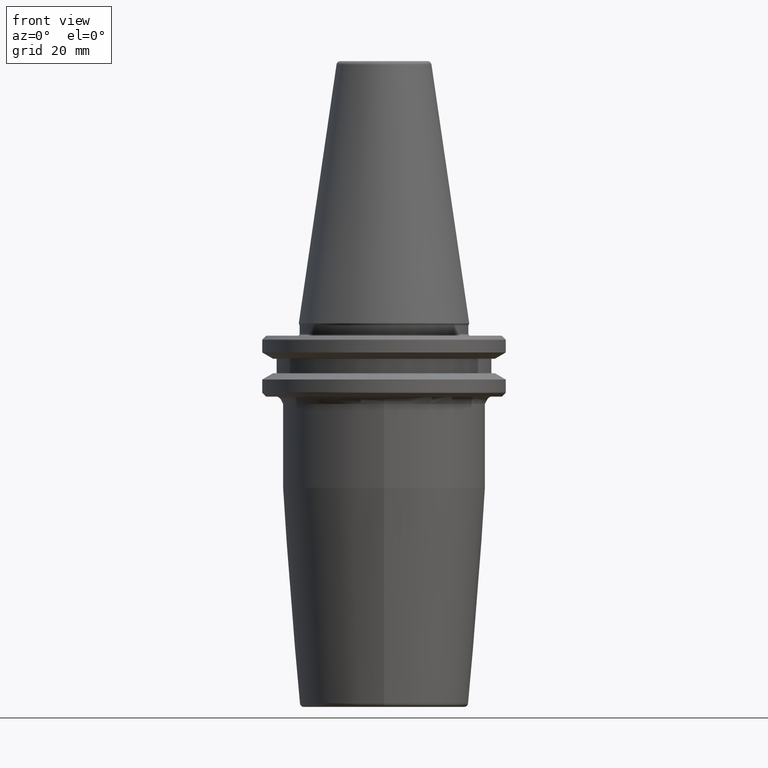
[diagram: clean part render]
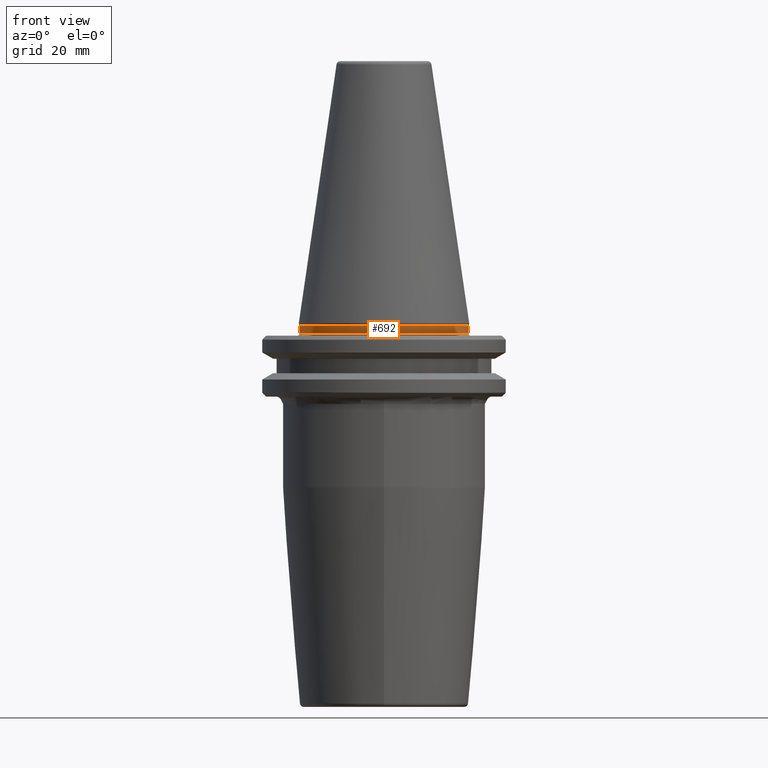
[diagram: same view with one face highlighted and labeled with its STEP entity id]
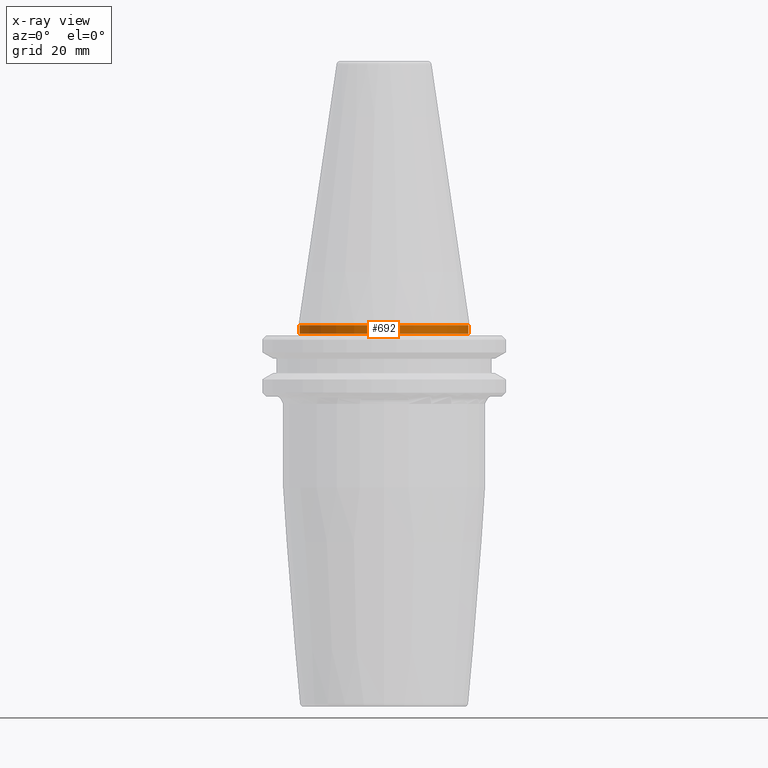
[diagram: x-ray of the same camera — body ghosted, the highlighted face saturated]
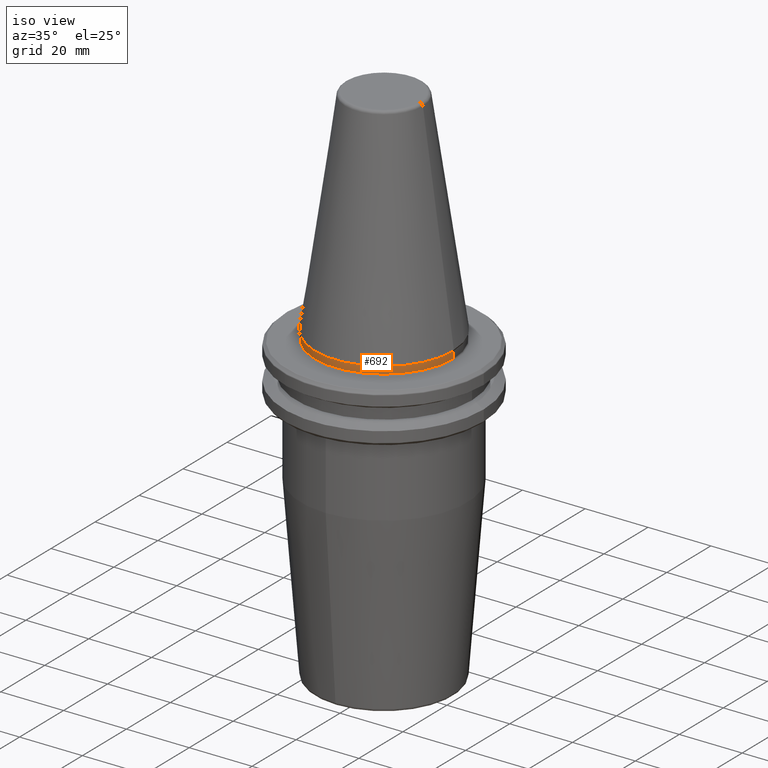
[diagram: same view with one face highlighted and labeled with its STEP entity id]
A machine part, front view. The second image highlights one B-rep face of the part: STEP entity #692.
The next image is the same camera in x-ray: the body ghosted, the highlighted face saturated — about 0% of this face is hidden behind the body in this view.
A second angle (iso view) of the same face is appended — the face is thin or edge-on in the first view.
In plain terms, the highlighted cylindrical surface (partial cylindrical patch) has radius 22 mm, axis along (-0, -0, 1).
Its self-contained STEP definition (entity closure, byte-faithful):
#119 = EDGE_CURVE ( 'NONE', #479, #916, #223, .T. ) ;
#179 = DIRECTION ( 'NONE',  ( -0.0000000000000000000, -0.0000000000000000000, 1.000000000000000000 ) ) ;
#210 = VECTOR ( 'NONE', #633, 1000.000000000000000 ) ;
#223 = LINE ( 'NONE', #454, #745 ) ;
#228 = FACE_OUTER_BOUND ( 'NONE', #866, .T. ) ;
#247 = CARTESIAN_POINT ( 'NONE',  ( 0.0000000000000000000, 0.0000000000000000000, -2.699999999999994000 ) ) ;
#323 = VERTEX_POINT ( 'NONE', #437 ) ;
#332 = CARTESIAN_POINT ( 'NONE',  ( 0.0000000000000000000, 0.0000000000000000000, -0.4825140571146635500 ) ) ;
#423 = AXIS2_PLACEMENT_3D ( 'NONE', #332, #767, #591 ) ;
#437 = CARTESIAN_POINT ( 'NONE',  ( -22.00000000000000400, 2.724839128102861000E-015, -2.699999999999994000 ) ) ;
#451 = DIRECTION ( 'NONE',  ( 1.000000000000000000, 0.0000000000000000000, 0.0000000000000000000 ) ) ;
#454 = CARTESIAN_POINT ( 'NONE',  ( 22.00000000000000000, 0.0000000000000000000, 113.5216080541959500 ) ) ;
#455 = CARTESIAN_POINT ( 'NONE',  ( -22.00000000000000000, 2.694222958124176800E-015, -0.4825140571146635500 ) ) ;
#479 = VERTEX_POINT ( 'NONE', #720 ) ;
#519 = DIRECTION ( 'NONE',  ( -0.0000000000000000000, -0.0000000000000000000, 1.000000000000000000 ) ) ;
#562 = CIRCLE ( 'NONE', #1008, 22.00000000000000400 ) ;
#570 = ORIENTED_EDGE ( 'NONE', *, *, #625, .T. ) ;
#591 = DIRECTION ( 'NONE',  ( 1.000000000000000000, 0.0000000000000000000, 0.0000000000000000000 ) ) ;
#625 = EDGE_CURVE ( 'NONE', #323, #479, #562, .T. ) ;
#633 = DIRECTION ( 'NONE',  ( -0.0000000000000000000, -0.0000000000000000000, 1.000000000000000000 ) ) ;
#643 = VERTEX_POINT ( 'NONE', #455 ) ;
#659 = CARTESIAN_POINT ( 'NONE',  ( 22.00000000000000000, 0.0000000000000000000, -0.4825140571146635500 ) ) ;
#667 = DIRECTION ( 'NONE',  ( 1.000000000000000000, 0.0000000000000000000, 0.0000000000000000000 ) ) ;
#692 = ADVANCED_FACE ( 'NONE', ( #228 ), #714, .T. ) ;
#698 = AXIS2_PLACEMENT_3D ( 'NONE', #1183, #179, #667 ) ;
#714 = CYLINDRICAL_SURFACE ( 'NONE', #698, 22.00000000000000000 ) ;
#720 = CARTESIAN_POINT ( 'NONE',  ( 22.00000000000000400, 0.0000000000000000000, -2.699999999999994000 ) ) ;
#745 = VECTOR ( 'NONE', #1130, 1000.000000000000000 ) ;
#767 = DIRECTION ( 'NONE',  ( -0.0000000000000000000, -0.0000000000000000000, 1.000000000000000000 ) ) ;
#839 = CIRCLE ( 'NONE', #423, 22.00000000000000000 ) ;
#852 = ORIENTED_EDGE ( 'NONE', *, *, #1106, .F. ) ;
#866 = EDGE_LOOP ( 'NONE', ( #984, #570, #1146, #852 ) ) ;
#916 = VERTEX_POINT ( 'NONE', #659 ) ;
#961 = EDGE_CURVE ( 'NONE', #323, #643, #1012, .T. ) ;
#975 = CARTESIAN_POINT ( 'NONE',  ( -22.00000000000000000, 2.694222958124176800E-015, 113.5216080541959500 ) ) ;
#984 = ORIENTED_EDGE ( 'NONE', *, *, #961, .F. ) ;
#1008 = AXIS2_PLACEMENT_3D ( 'NONE', #247, #519, #451 ) ;
#1012 = LINE ( 'NONE', #975, #210 ) ;
#1106 = EDGE_CURVE ( 'NONE', #643, #916, #839, .T. ) ;
#1130 = DIRECTION ( 'NONE',  ( -0.0000000000000000000, -0.0000000000000000000, 1.000000000000000000 ) ) ;
#1146 = ORIENTED_EDGE ( 'NONE', *, *, #119, .T. ) ;
#1183 = CARTESIAN_POINT ( 'NONE',  ( 0.0000000000000000000, 0.0000000000000000000, 113.5216080541959500 ) ) ;